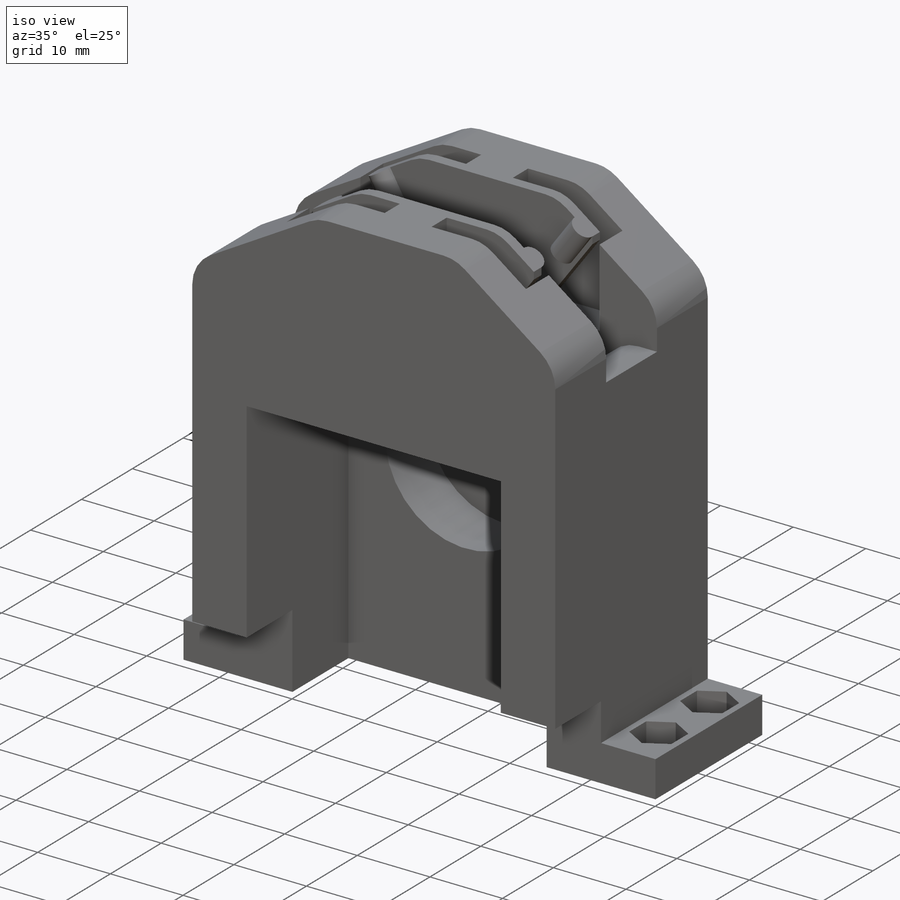
[diagram: iso view]
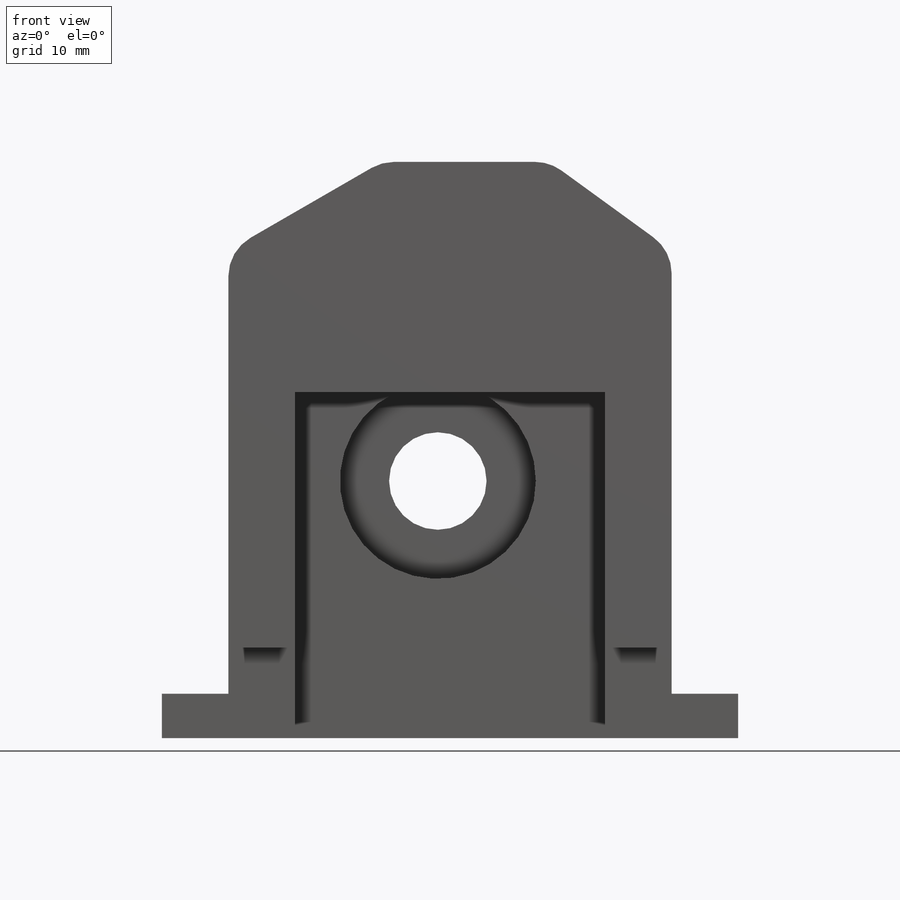
[diagram: front view]
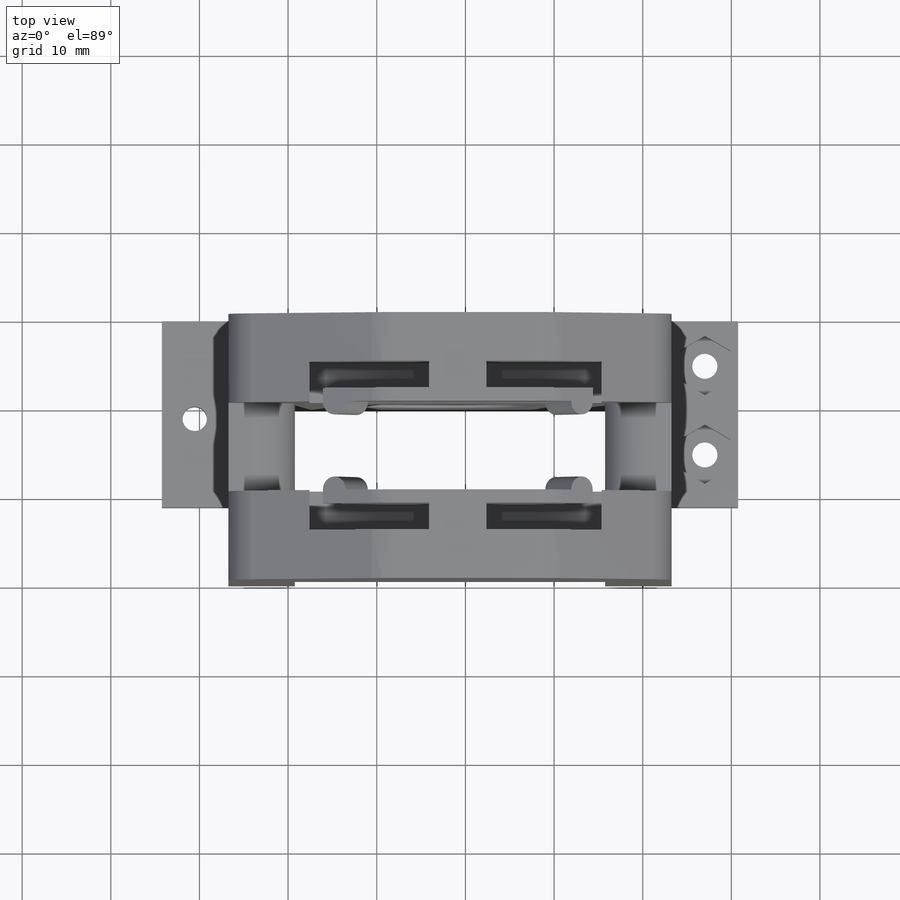
[diagram: top view]
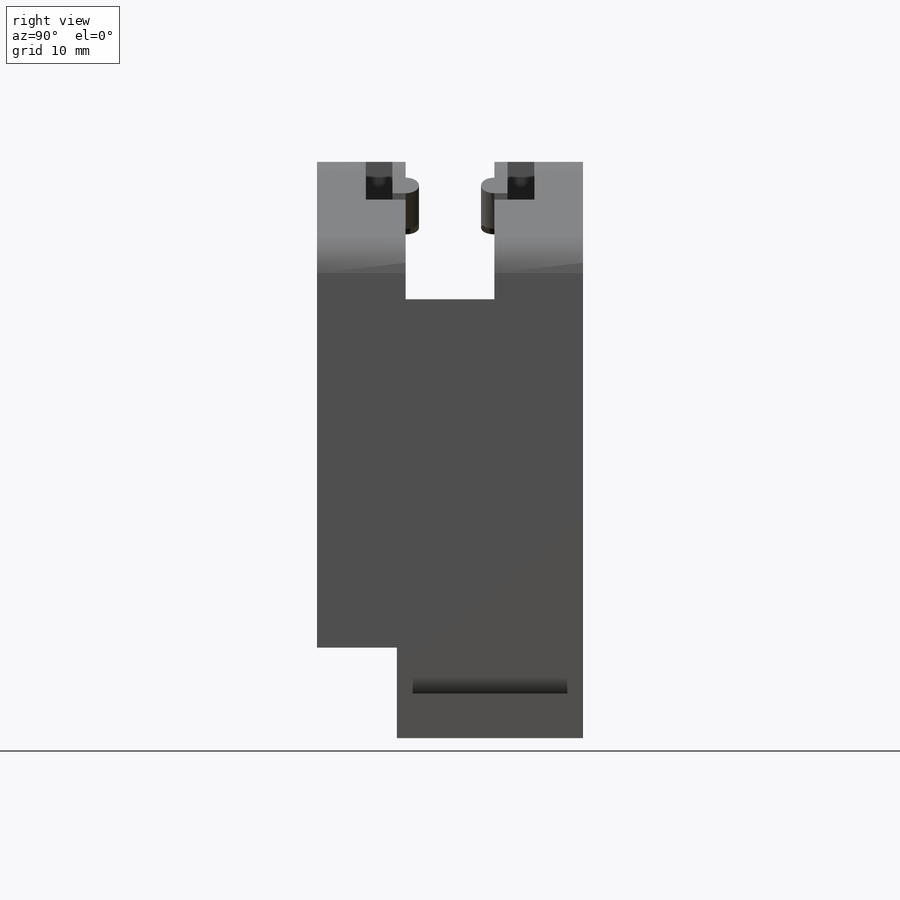
[diagram: right view]
SOLIDWORKS PART (.sldprt)
format: sldprt  version: not decoded by parser v0  size: 749,568 bytes
history: native  units: mm
features: sketch x19, fillet x14, cut_extrude x13, extrude x6, material x1 (+13 scaffold rows collapsed)
feature tree (66):
  scaffold x13  (default folders/planes/origin — collapsed)
  material  "Material <not specified>"
  sketch  "Sketch1"  dims[c1.D1=50.0mm c1.D2=65.0mm c1.D3=0.0mm c1.D4=0.0mm c1.D5=~10.868387mm c2.D5=60.0deg c2.D6=0.0mm c2.D7=0.0mm c2.D8=~14.23441mm c3.D8=54.0deg c3.D9=10.0mm c3.D10=10.0mm]
  extrude  "Boss-Extrude1"  Depth=30mm
  sketch  "Sketch2"  dims[D1=10.0mm D2=10.0mm D3=0.0mm D4=0.0mm]
  cut_extrude  "Cut-Extrude1"  Depth=25mm
  sketch  "Sketch3"  dims[D1=10.0mm D2=10.0mm D3=7.5mm D4=7.5mm]
  sketch  "Sketch4"  dims[c1.D2=~5.275914mm c1.D4=3.0mm c1.D5=3.0mm c1.D6=4.0mm c1.D1=0.0mm c2.D2=13.8mm c2.D3=0.0mm c2.D6=13.8mm]
  extrude  "Boss-Extrude2"  Depth=5mm
  sketch  "Sketch6"  dims[D1=0.0mm D2=3.0mm D3=12.0mm D4=1.5mm D5=0.0mm D6=0.0mm D7=1.5mm D8=0.0mm D9=0.0mm D10=0.0mm D11=1.5mm D12=0.0mm D13=0.0mm D14=1.5mm D15=3.0mm D16=12.0mm D17=2.0mm]
  cut_extrude  "Cut-Extrude15"  Depth=15mm
  sketch  "Sketch7"  dims[c1.D1=0.0mm c1.D2=2.0mm c1.D3=~8.086264mm c1.D4=2.0mm c2.D2=0.0mm c2.D1=0.0mm c2.D3=3.0mm c2.D4=30.5mm]
  cut_extrude  "Cut-Extrude16"  Depth=3mm
  sketch  "Sketch8"  dims[D1=0.0mm D2=39.0mm D3=7.5mm D4=7.5mm]
  cut_extrude  "Cut-Extrude17"  [1 undecoded]
  sketch  "Sketch9"  dims[D1=~6.769529mm D2=29.0mm]
  cut_extrude  "Cut-Extrude18"  [1 undecoded]
  cut_extrude  "Cut-Extrude19"  Depth=8mm
  fillet  "Fillet5"  Radius=5mm
  fillet  "Fillet6"  Radius=5mm
  fillet  "Fillet7"  Radius=5mm
  fillet  "Fillet8"  Radius=5mm
  fillet  "Fillet9"  Radius=5mm
  fillet  "Fillet10"  Radius=5mm
  sketch  "Sketch10"  dims[D1=0.0mm D2=0.0mm D3=9.0mm D4=10.2mm]
  cut_extrude  "Cut-Extrude20"  [1 undecoded]
  sketch  "Sketch11"  dims[c1.D2=3.0mm c1.D4=3.0mm c1.D6=4.0mm c1.D1=0.0mm c1.D3=0.0mm c1.D5=12.5mm c2.D6=12.5mm]
  extrude  "Boss-Extrude3"  Depth=5mm
  sketch  "Sketch13"  dims[D1=3.0mm D2=1.5mm D3=0.0mm D4=0.0mm D5=0.0mm D6=1.0mm D7=1.0mm D8=0.0mm D9=3.0mm D10=1.5mm D11=0.0mm D12=0.0mm D13=12.0mm D14=12.0mm D15=~9.570685mm]
  cut_extrude  "Cut-Extrude22"  Depth=15mm
  sketch  "Sketch14"  dims[D1=5.0mm D2=0.0mm D3=0.0mm D4=0.0mm]
  extrude  "Boss-Extrude4"  Depth=7.5mm
  sketch  "Sketch15"  dims[D1=0.0mm D2=0.0mm D3=0.0mm D4=5.0mm]
  extrude  "Boss-Extrude5"  Depth=7.5mm
  sketch  "Sketch16"  dims[c1.D3=5.8mm c1.D4=5.8mm c1.D7=5.8mm c1.D8=5.8mm c1.D1=~1.755743mm c2.D1=0.0deg c2.D2=~2.035617mm c3.D2=0.0deg c3.D5=3.75mm c3.D6=3.75mm c3.D7=5.0mm c3.D8=10.0mm]
  cut_extrude  "Cut-Extrude23"  Depth=3.5mm
  sketch  "Sketch17"  dims[D1=2.85mm D2=2.85mm D3=3.75mm D4=3.75mm D5=5.0mm D6=10.0mm]
  cut_extrude  "Cut-Extrude24"  [1 undecoded]
  sketch  "Sketch19"  dims[D1=0.0mm D2=0.0mm D3=0.0mm D4=0.0mm D5=0.0mm D6=0.0mm D7=0.0mm D8=0.0mm]
  extrude  "Boss-Extrude7"  Depth=9.5mm
  fillet  "Fillet14"  Radius=5mm
  fillet  "Fillet18"  Radius=5mm
  fillet  "Fillet19"  Radius=5mm
  fillet  "Fillet20"  Radius=5mm
  fillet  "Fillet21"  Radius=5mm
  fillet  "Fillet22"  Radius=5mm
  fillet  "Fillet23"  Radius=5mm
  fillet  "Fillet24"  Radius=5mm
  sketch  "Sketch20"  dims[D1=2.75mm D2=10.0mm D3=3.7mm]
  cut_extrude  "Cut-Extrude25"  Depth=10mm
  sketch  "Sketch21"  dims[c1.D1=~12.510518mm c1.D2=11.0mm c2.D1=0.0mm]
  cut_extrude  "Cut-Extrude26"  Depth=10mm
  sketch  "Sketch22"  dims[c1.D1=~4.157302mm c2.D1=360.0deg c2.D2=0.0mm c2.D3=~3.047356mm c3.D3=0.0deg c3.D4=~0.00816mm c3.D1=0.0mm c3.D2=7.0mm c4.D4=4.0mm c4.D3=~3.328501mm c5.D3=180.0deg c6.D3=~5.738835mm c7.D3=180.0deg c7.D5=~5.738867mm c8.D3=0.0mm c8.D5=0.0mm c8.D6=0.0mm c8.D7=7.5mm c8.D8=5.5mm]
  cut_extrude  "Cut-Extrude27"  Depth=3mm
decode coverage: 48 of 52 modeling features carry decoded parameters
note: ~ marks probable driven/reference dimensions
note: 4 parameter values undecoded
summary: no parameter record found for 4 features
note: suppression state not decoded; provenance and decode notes live in map.json
